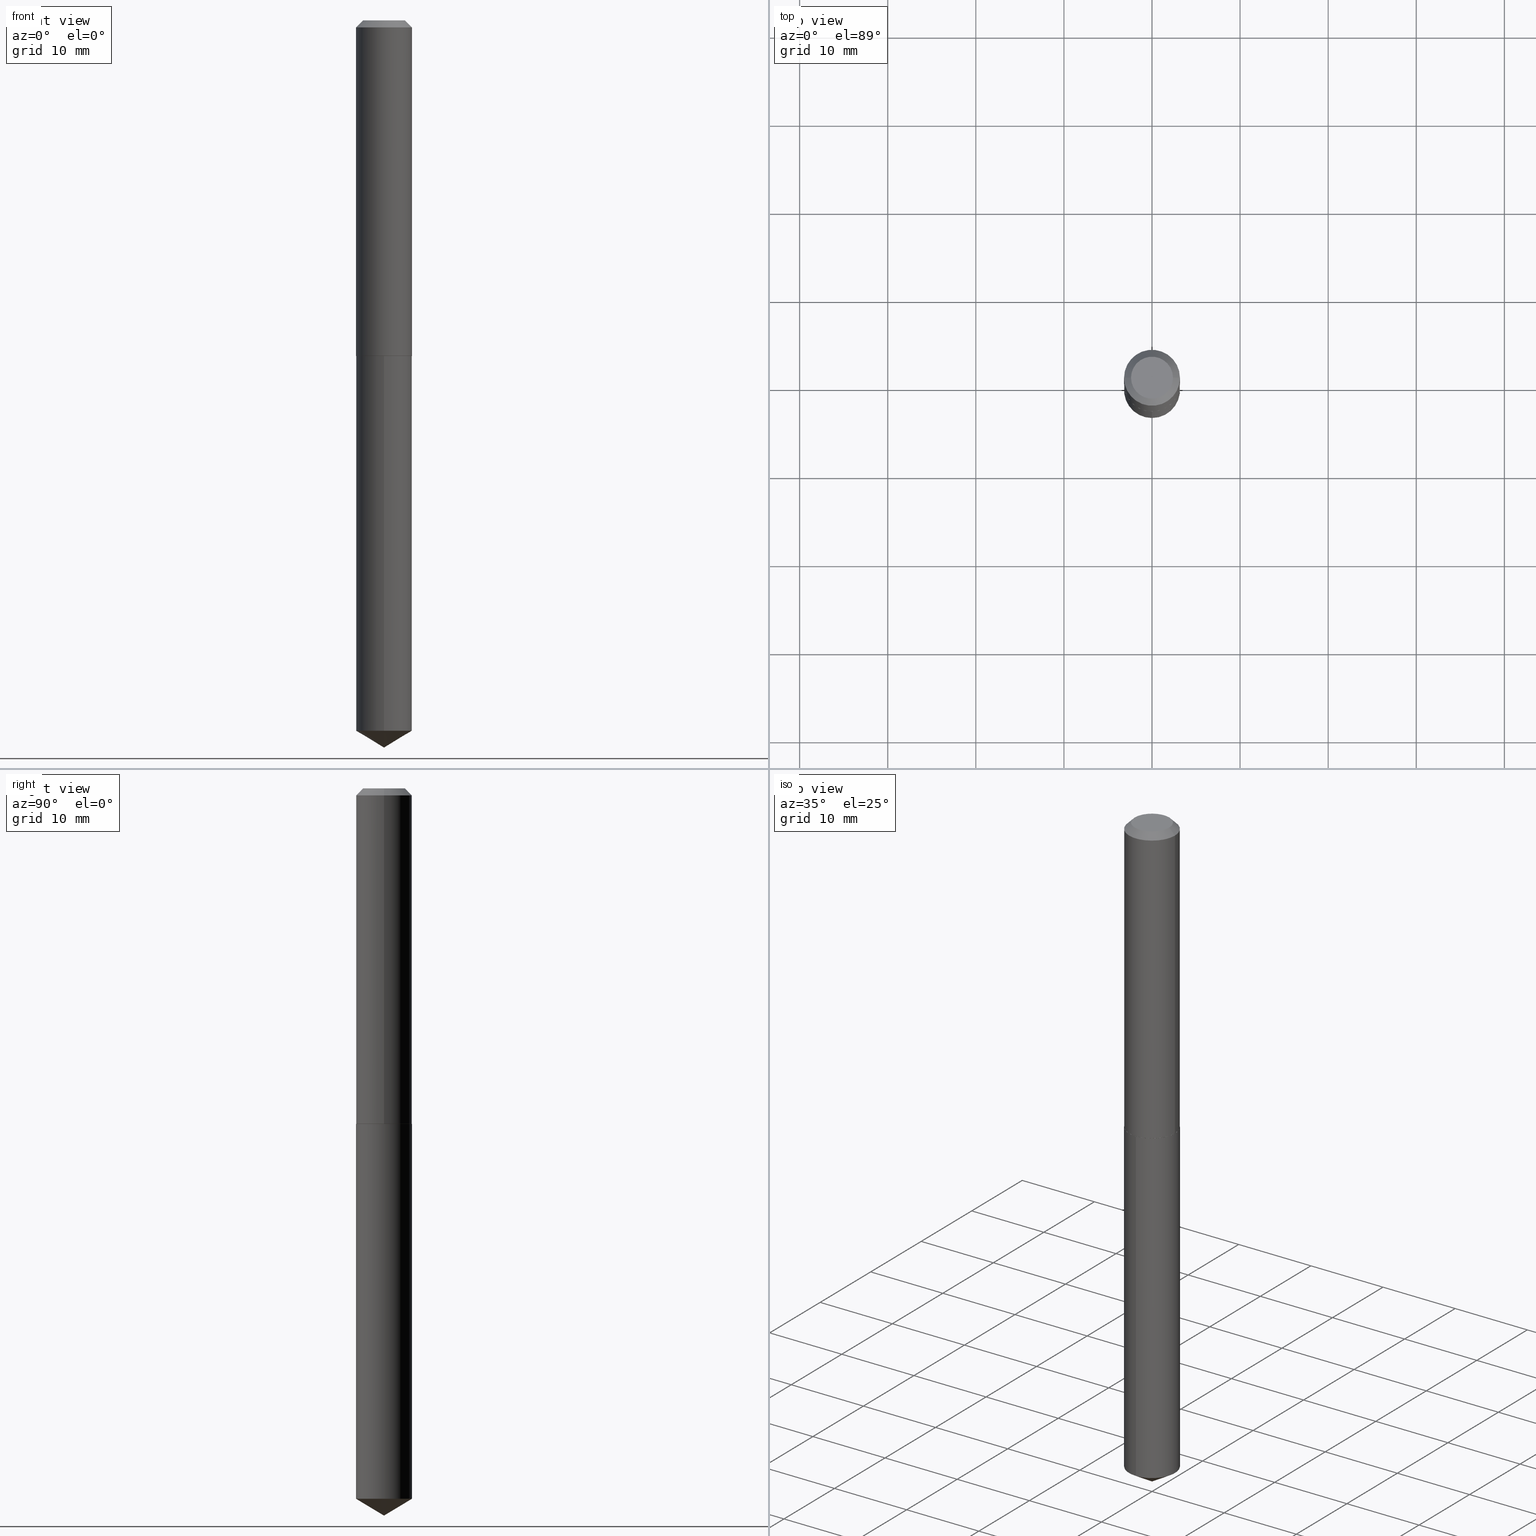
[diagram: canonical four-view strip — front | top / right | iso, engineering-drawing reading convention]
A machine part, canonical four-view strip (front | top / right | iso — engineering-drawing reading convention). The complete STEP part file that produces these views, byte-faithful:
ISO-10303-21;
HEADER;
FILE_DESCRIPTION (( 'STEP AP203' ),
    '1' );
FILE_NAME ('57176.STEP',
    '2024-04-22T23:25:51',
    ( '' ),
    ( '' ),
    'SwSTEP 2.0',
    'SolidWorks 2023',
    '' );
FILE_SCHEMA (( 'CONFIG_CONTROL_DESIGN' ));
ENDSEC;

DATA;
#1 = ADVANCED_BREP_SHAPE_REPRESENTATION ( '57176', ( #210, #321, #162 ), #319 ) ;
#2 = CARTESIAN_POINT ( 'NONE',  ( -0.09374999999999998612, 7.092071469525108711E-16, 2.449293598247037114E-19 ) ) ;
#3 = CIRCLE ( 'NONE', #69, 0.09374999999999998612 ) ;
#4 = APPLICATION_CONTEXT ( 'configuration controlled 3d designs of mechanical parts and assemblies' ) ;
#5 = CC_DESIGN_DATE_AND_TIME_ASSIGNMENT ( #349, #48, ( #332 ) ) ;
#6 = CARTESIAN_POINT ( 'NONE',  ( 7.642090019328607917E-31, -1.091087918388491006E-16, -0.03125000000000022898 ) ) ;
#7 = CLOSED_SHELL ( 'NONE', ( #97, #110, #389, #67, #375, #218, #147, #100 ) ) ;
#8 = CARTESIAN_POINT ( 'NONE',  ( -5.989671091818699506E-48, 8.551662891794013634E-34, 2.449293598294725065E-19 ) ) ;
#9 = ORIENTED_EDGE ( 'NONE', *, *, #40, .F. ) ;
#10 = DESIGN_CONTEXT ( 'detailed design', #4, 'design' ) ;
#11 = DIRECTION ( 'NONE',  ( -2.445468806185136597E-29, 3.491481338843145583E-15, 1.000000000000000000 ) ) ;
#12 = LINE ( 'NONE', #104, #155 ) ;
#13 =( NAMED_UNIT ( * ) PLANE_ANGLE_UNIT ( ) SI_UNIT ( $, .RADIAN. ) );
#14 = ORIENTED_EDGE ( 'NONE', *, *, #74, .F. ) ;
#15 = EDGE_LOOP ( 'NONE', ( #355, #346 ) ) ;
#16 = ORIENTED_EDGE ( 'NONE', *, *, #66, .F. ) ;
#17 = DIRECTION ( 'NONE',  ( -1.000000000000000000, 6.982962677686266711E-15, 0.000000000000000000 ) ) ;
#18 = APPROVAL_DATE_TIME ( #378, #208 ) ;
#19 = CARTESIAN_POINT ( 'NONE',  ( 3.666980474874613215E-29, -5.235476267595297462E-15, -1.499500000000000277 ) ) ;
#20 = VERTEX_POINT ( 'NONE', #29 ) ;
#21 = CIRCLE ( 'NONE', #217, 0.1250000000000000000 ) ;
#22 = DIRECTION ( 'NONE',  ( -2.445468806185136877E-29, 3.491481338843145188E-15, 1.000000000000000000 ) ) ;
#23 = ORIENTED_EDGE ( 'NONE', *, *, #66, .T. ) ;
#24 = FACE_OUTER_BOUND ( 'NONE', #268, .T. ) ;
#25 = CC_DESIGN_PERSON_AND_ORGANIZATION_ASSIGNMENT ( #202, #212, ( #58 ) ) ;
#26 = CYLINDRICAL_SURFACE ( 'NONE', #249, 0.1250000000000000833 ) ;
#27 = CIRCLE ( 'NONE', #132, 0.1250000000000000000 ) ;
#28 = CARTESIAN_POINT ( 'NONE',  ( 0.1250000000000000000, -9.819791265496324395E-16, -0.03125000000000022898 ) ) ;
#29 = CARTESIAN_POINT ( 'NONE',  ( 0.09374999999999998612, -8.049213644256857164E-16, 2.449293598345754986E-19 ) ) ;
#30 = ORIENTED_EDGE ( 'NONE', *, *, #225, .T. ) ;
#31 = PERSON_AND_ORGANIZATION ( #127, #306 ) ;
#32 = EDGE_CURVE ( 'NONE', #381, #43, #122, .T. ) ;
#33 = CARTESIAN_POINT ( 'NONE',  ( 3.668203209277704895E-29, -5.237222008264718177E-15, -1.500000000000000222 ) ) ;
#34 = CIRCLE ( 'NONE', #221, 0.1250000000000000000 ) ;
#35 = APPROVAL_DATE_TIME ( #130, #131 ) ;
#36 = CARTESIAN_POINT ( 'NONE',  ( 3.668203209277704895E-29, -5.237222008264718177E-15, -1.500000000000000222 ) ) ;
#37 = DIRECTION ( 'NONE',  ( 6.090539988449798946E-15, 0.8571673007021168855, 0.5150380749100467170 ) ) ;
#38 = DIRECTION ( 'NONE',  ( -2.445363039001879850E-29, 3.491632803469463695E-15, 1.000000000000000000 ) ) ;
#39 = EDGE_LOOP ( 'NONE', ( #367, #89 ) ) ;
#40 = EDGE_CURVE ( 'NONE', #146, #73, #93, .T. ) ;
#41 = CIRCLE ( 'NONE', #274, 0.1250000000000000000 ) ;
#42 = CARTESIAN_POINT ( 'NONE',  ( 0.000000000000000000, 0.000000000000000000, 0.000000000000000000 ) ) ;
#43 = VERTEX_POINT ( 'NONE', #60 ) ;
#44 = DIRECTION ( 'NONE',  ( -0.7071067811867406405, 7.493145998871051513E-15, 0.7071067811863543939 ) ) ;
#45 = SECURITY_CLASSIFICATION_LEVEL ( 'unclassified' ) ;
#46 = ADVANCED_FACE ( 'NONE', ( #183 ), #299, .T. ) ;
#47 = FACE_OUTER_BOUND ( 'NONE', #39, .T. ) ;
#48 = DATE_TIME_ROLE ( 'classification_date' ) ;
#49 = ORIENTED_EDGE ( 'NONE', *, *, #192, .F. ) ;
#50 = PERSON_AND_ORGANIZATION_ROLE ( 'classification_officer' ) ;
#51 = CARTESIAN_POINT ( 'NONE',  ( 8.881784197002027379E-16, 0.1249999999999889394, -3.174892422621556243 ) ) ;
#52 = CARTESIAN_POINT ( 'NONE',  ( -0.1250000000000001665, -4.347297847895170652E-15, -1.499500000000000277 ) ) ;
#53 = EDGE_LOOP ( 'NONE', ( #30, #369, #49, #102 ) ) ;
#54 = DIRECTION ( 'NONE',  ( 0.7071067811865450192, -7.319954787623246579E-15, -0.7071067811865500152 ) ) ;
#55 = DIMENSIONAL_EXPONENTS ( 1.000000000000000000, 0.000000000000000000, 0.000000000000000000, 0.000000000000000000, 0.000000000000000000, 0.000000000000000000, 0.000000000000000000 ) ;
#56 = ORIENTED_EDGE ( 'NONE', *, *, #196, .F. ) ;
#57 = AXIS2_PLACEMENT_3D ( 'NONE', #33, #223, #333 ) ;
#58 = PRODUCT_DEFINITION_FORMATION_WITH_SPECIFIED_SOURCE ( 'ANY', '', #372, .NOT_KNOWN. ) ;
#59 = CARTESIAN_POINT ( 'NONE',  ( 7.947429876756110354E-29, -1.134780661127575760E-14, -3.250000000000000000 ) ) ;
#60 = CARTESIAN_POINT ( 'NONE',  ( 8.881784197002029351E-16, 0.1249999999999947542, -1.500000000000000666 ) ) ;
#61 = PERSON_AND_ORGANIZATION ( #127, #306 ) ;
#62 = DIRECTION ( 'NONE',  ( -2.445468806185136597E-29, 3.491481338843145583E-15, 1.000000000000000000 ) ) ;
#63 = AXIS2_PLACEMENT_3D ( 'NONE', #19, #379, #109 ) ;
#64 = APPROVAL_PERSON_ORGANIZATION ( #383, #233, #243 ) ;
#65 =( LENGTH_UNIT ( ) NAMED_UNIT ( * ) SI_UNIT ( $, .METRE. ) );
#66 = EDGE_CURVE ( 'NONE', #390, #136, #313, .T. ) ;
#67 = ADVANCED_FACE ( 'NONE', ( #153 ), #141, .F. ) ;
#68 = DIRECTION ( 'NONE',  ( 6.982962677686265922E-15, 1.000000000000000000, -3.491632803469463301E-15 ) ) ;
#69 = AXIS2_PLACEMENT_3D ( 'NONE', #8, #165, #260 ) ;
#70 = FACE_OUTER_BOUND ( 'NONE', #15, .T. ) ;
#71 = LOCAL_TIME ( 19, 25, 51.00000000000000000, #158 ) ;
#72 = ORIENTED_EDGE ( 'NONE', *, *, #138, .T. ) ;
#73 = VERTEX_POINT ( 'NONE', #283 ) ;
#74 = EDGE_CURVE ( 'NONE', #180, #282, #206, .T. ) ;
#75 = ORIENTED_EDGE ( 'NONE', *, *, #40, .T. ) ;
#76 = ORIENTED_EDGE ( 'NONE', *, *, #357, .T. ) ;
#77 = ADVANCED_FACE ( 'NONE', ( #24 ), #79, .T. ) ;
#78 = DIRECTION ( 'NONE',  ( -2.445468806185136597E-29, 3.491481338843145583E-15, 1.000000000000000000 ) ) ;
#79 = CONICAL_SURFACE ( 'NONE', #364, 65.52281426576919898, 1.029744258676659641 ) ;
#80 =( NAMED_UNIT ( * ) SI_UNIT ( $, .STERADIAN. ) SOLID_ANGLE_UNIT ( ) );
#81 = ORIENTED_EDGE ( 'NONE', *, *, #285, .F. ) ;
#82 = CARTESIAN_POINT ( 'NONE',  ( -2.994835545909349753E-48, 4.275831445897006817E-34, 1.224646799147362533E-19 ) ) ;
#83 = CC_DESIGN_PERSON_AND_ORGANIZATION_ASSIGNMENT ( #61, #302, ( #372 ) ) ;
#84 = LINE ( 'NONE', #318, #117 ) ;
#85 = CARTESIAN_POINT ( 'NONE',  ( 0.000000000000000000, 0.000000000000000000, 0.000000000000000000 ) ) ;
#86 = VECTOR ( 'NONE', #329, 39.37007874015748143 ) ;
#87 = LINE ( 'NONE', #211, #238 ) ;
#88 = CC_DESIGN_PERSON_AND_ORGANIZATION_ASSIGNMENT ( #315, #292, ( #58 ) ) ;
#89 = ORIENTED_EDGE ( 'NONE', *, *, #169, .T. ) ;
#90 = MECHANICAL_CONTEXT ( 'NONE', #98, 'mechanical' ) ;
#91 = CIRCLE ( 'NONE', #275, 0.1250000000000001665 ) ;
#92 = CARTESIAN_POINT ( 'NONE',  ( 7.642090019328607917E-31, -1.091087918388491006E-16, -0.03125000000000022898 ) ) ;
#93 = LINE ( 'NONE', #219, #86 ) ;
#94 = EDGE_CURVE ( 'NONE', #231, #136, #116, .T. ) ;
#95 = CARTESIAN_POINT ( 'NONE',  ( 0.000000000000000000, 0.000000000000000000, 0.000000000000000000 ) ) ;
#96 = DIRECTION ( 'NONE',  ( -1.000000000000000000, 6.982962677686266711E-15, 0.000000000000000000 ) ) ;
#97 = ADVANCED_FACE ( 'NONE', ( #112 ), #199, .T. ) ;
#98 = APPLICATION_CONTEXT ( 'configuration controlled 3d designs of mechanical parts and assemblies' ) ;
#99 = CIRCLE ( 'NONE', #167, 0.1245000000000002632 ) ;
#100 = ADVANCED_FACE ( 'NONE', ( #47 ), #289, .F. ) ;
#101 = DIRECTION ( 'NONE',  ( 1.000000000000000000, -6.982962677686269077E-15, 0.000000000000000000 ) ) ;
#102 = ORIENTED_EDGE ( 'NONE', *, *, #138, .F. ) ;
#103 = ADVANCED_FACE ( 'NONE', ( #151 ), #331, .T. ) ;
#104 = CARTESIAN_POINT ( 'NONE',  ( -0.1250000000000000833, 8.881784197001258240E-16, -6.148668862818636431E-30 ) ) ;
#105 = ORIENTED_EDGE ( 'NONE', *, *, #169, .F. ) ;
#106 = LINE ( 'NONE', #334, #296 ) ;
#107 = CARTESIAN_POINT ( 'NONE',  ( 3.668203209277704895E-29, -5.237222008264718177E-15, -1.500000000000000222 ) ) ;
#108 = DIRECTION ( 'NONE',  ( -2.445363039001879850E-29, 3.491632803469463301E-15, 1.000000000000000000 ) ) ;
#109 = DIRECTION ( 'NONE',  ( 1.000000000000000000, -6.982962677686269077E-15, 0.000000000000000000 ) ) ;
#110 = ADVANCED_FACE ( 'NONE', ( #350 ), #26, .T. ) ;
#111 = AXIS2_PLACEMENT_3D ( 'NONE', #134, #38, #368 ) ;
#112 = FACE_OUTER_BOUND ( 'NONE', #371, .T. ) ;
#113 = CARTESIAN_POINT ( 'NONE',  ( 7.763923233860773815E-29, -1.108533133337258347E-14, -3.174892422621555799 ) ) ;
#114 = DIRECTION ( 'NONE',  ( -1.000000000000000000, 6.982962677686265922E-15, -4.876176775795935793E-29 ) ) ;
#115 = CARTESIAN_POINT ( 'NONE',  ( 7.642090019328607917E-31, -1.091087918388491006E-16, -0.03125000000000022898 ) ) ;
#116 = CIRCLE ( 'NONE', #63, 0.1250000000000001665 ) ;
#117 = VECTOR ( 'NONE', #54, 39.37007874015748143 ) ;
#118 = ORIENTED_EDGE ( 'NONE', *, *, #189, .F. ) ;
#119 = DATE_AND_TIME ( #270, #386 ) ;
#120 = DIRECTION ( 'NONE',  ( 1.000000000000000000, -6.982962677686266711E-15, 0.000000000000000000 ) ) ;
#121 = CARTESIAN_POINT ( 'NONE',  ( -8.728703347107465582E-16, -0.1250000000000052458, -1.499999999999999556 ) ) ;
#122 = LINE ( 'NONE', #251, #154 ) ;
#123 = EDGE_CURVE ( 'NONE', #144, #73, #281, .T. ) ;
#124 = AXIS2_PLACEMENT_3D ( 'NONE', #115, #293, #17 ) ;
#125 = UNCERTAINTY_MEASURE_WITH_UNIT (LENGTH_MEASURE( 1.000000000000000082E-05 ), #224, 'distance_accuracy_value', 'NONE');
#126 = CC_DESIGN_SECURITY_CLASSIFICATION ( #332, ( #58 ) ) ;
#127 = PERSON ( 'UNSPECIFIED', 'UNSPECIFIED', 'UNSPECIFIED', ('UNSPECIFIED'), ('UNSPECIFIED'), ('UNSPECIFIED') ) ;
#128 = DIRECTION ( 'NONE',  ( 0.7071067811867406405, -2.468850131084279700E-15, 0.7071067811863543939 ) ) ;
#129 = EDGE_CURVE ( 'NONE', #197, #390, #99, .T. ) ;
#130 = DATE_AND_TIME ( #273, #71 ) ;
#131 = APPROVAL ( #184, 'UNSPECIFIED' ) ;
#132 = AXIS2_PLACEMENT_3D ( 'NONE', #113, #347, #175 ) ;
#133 = DIRECTION ( 'NONE',  ( 0.000000000000000000, 0.000000000000000000, 1.000000000000000000 ) ) ;
#134 = CARTESIAN_POINT ( 'NONE',  ( 3.668203209277704895E-29, -5.237222008264718177E-15, -1.500000000000000222 ) ) ;
#135 = ORIENTED_EDGE ( 'NONE', *, *, #257, .F. ) ;
#136 = VERTEX_POINT ( 'NONE', #244 ) ;
#137 = COORDINATED_UNIVERSAL_TIME_OFFSET ( 5, 0, .BEHIND. ) ;
#138 = EDGE_CURVE ( 'NONE', #282, #149, #354, .T. ) ;
#139 = CARTESIAN_POINT ( 'NONE',  ( -8.832654686624381431E-28, 1.261182789899733228E-13, 36.12007874015748143 ) ) ;
#140 = ORIENTED_EDGE ( 'NONE', *, *, #129, .F. ) ;
#141 = PLANE ( 'NONE',  #305 ) ;
#142 = LOCAL_TIME ( 19, 25, 51.00000000000000000, #137 ) ;
#143 = EDGE_CURVE ( 'NONE', #197, #231, #309, .T. ) ;
#144 = VERTEX_POINT ( 'NONE', #28 ) ;
#145 = COORDINATED_UNIVERSAL_TIME_OFFSET ( 5, 0, .BEHIND. ) ;
#146 = VERTEX_POINT ( 'NONE', #2 ) ;
#147 = ADVANCED_FACE ( 'NONE', ( #160 ), #300, .T. ) ;
#148 = ORIENTED_EDGE ( 'NONE', *, *, #362, .F. ) ;
#149 = VERTEX_POINT ( 'NONE', #121 ) ;
#150 = ORIENTED_EDGE ( 'NONE', *, *, #290, .F. ) ;
#151 = FACE_OUTER_BOUND ( 'NONE', #198, .T. ) ;
#152 = APPROVAL_STATUS ( 'not_yet_approved' ) ;
#153 = FACE_OUTER_BOUND ( 'NONE', #166, .T. ) ;
#154 = VECTOR ( 'NONE', #361, 39.37007874015748143 ) ;
#155 = VECTOR ( 'NONE', #259, 39.37007874015748143 ) ;
#156 = DIRECTION ( 'NONE',  ( 2.445468806185136597E-29, -3.491481338843145583E-15, -1.000000000000000000 ) ) ;
#157 = AXIS2_PLACEMENT_3D ( 'NONE', #272, #359, #253 ) ;
#158 = COORDINATED_UNIVERSAL_TIME_OFFSET ( 5, 0, .BEHIND. ) ;
#159 = PRODUCT_RELATED_PRODUCT_CATEGORY ( 'detail', '', ( #372 ) ) ;
#160 = FACE_OUTER_BOUND ( 'NONE', #314, .T. ) ;
#161 = VECTOR ( 'NONE', #44, 39.37007874015748143 ) ;
#162 = AXIS2_PLACEMENT_3D ( 'NONE', #42, #133, #195 ) ;
#163 = ORIENTED_EDGE ( 'NONE', *, *, #290, .T. ) ;
#164 = CARTESIAN_POINT ( 'NONE',  ( -0.1245000000000002632, -4.349947075069281064E-15, -1.499999999999999778 ) ) ;
#165 = DIRECTION ( 'NONE',  ( -2.445468806185136597E-29, 3.491481338843145583E-15, 1.000000000000000000 ) ) ;
#166 = EDGE_LOOP ( 'NONE', ( #140, #118 ) ) ;
#167 = AXIS2_PLACEMENT_3D ( 'NONE', #291, #384, #262 ) ;
#168 = LOCAL_TIME ( 19, 25, 51.00000000000000000, #145 ) ;
#169 = EDGE_CURVE ( 'NONE', #20, #146, #264, .T. ) ;
#170 = EDGE_LOOP ( 'NONE', ( #16, #204, #374, #135 ) ) ;
#171 = EDGE_LOOP ( 'NONE', ( #193, #248, #242, #81 ) ) ;
#172 = CARTESIAN_POINT ( 'NONE',  ( 3.666980474874613215E-29, -5.235476267595297462E-15, -1.499500000000000277 ) ) ;
#173 = ORIENTED_EDGE ( 'NONE', *, *, #143, .F. ) ;
#174 = ORIENTED_EDGE ( 'NONE', *, *, #257, .T. ) ;
#175 = DIRECTION ( 'NONE',  ( -6.982962677686265922E-15, -1.000000000000000000, 4.370956789862821150E-15 ) ) ;
#176 = AXIS2_PLACEMENT_3D ( 'NONE', #6, #156, #96 ) ;
#177 = DIRECTION ( 'NONE',  ( -5.985567269335961790E-15, -0.8571673007021131108, 0.5150380749100526012 ) ) ;
#178 = CARTESIAN_POINT ( 'NONE',  ( -8.728703347107465582E-16, -0.1250000000000052458, -1.499999999999999556 ) ) ;
#179 = FACE_OUTER_BOUND ( 'NONE', #53, .T. ) ;
#180 = VERTEX_POINT ( 'NONE', #59 ) ;
#181 = DIRECTION ( 'NONE',  ( -2.445363039001879850E-29, 3.491632803469463695E-15, 1.000000000000000000 ) ) ;
#182 = DIRECTION ( 'NONE',  ( -2.445468806185136597E-29, 3.491481338843145583E-15, 1.000000000000000000 ) ) ;
#183 = FACE_OUTER_BOUND ( 'NONE', #234, .T. ) ;
#184 = APPROVAL_STATUS ( 'not_yet_approved' ) ;
#185 = FACE_OUTER_BOUND ( 'NONE', #226, .T. ) ;
#186 = DIRECTION ( 'NONE',  ( -2.445468806185136597E-29, 3.491481338843145583E-15, 1.000000000000000000 ) ) ;
#187 = LENGTH_MEASURE_WITH_UNIT ( LENGTH_MEASURE( 0.02539999999999999897 ), #65 );
#188 = AXIS2_PLACEMENT_3D ( 'NONE', #139, #241, #213 ) ;
#189 = EDGE_CURVE ( 'NONE', #390, #197, #228, .T. ) ;
#190 = AXIS2_PLACEMENT_3D ( 'NONE', #343, #214, #311 ) ;
#191 = DIRECTION ( 'NONE',  ( -2.445363039001879850E-29, 3.491632803469463695E-15, 1.000000000000000000 ) ) ;
#192 = EDGE_CURVE ( 'NONE', #149, #43, #34, .T. ) ;
#193 = ORIENTED_EDGE ( 'NONE', *, *, #94, .T. ) ;
#194 = PLANE ( 'NONE',  #336 ) ;
#195 = DIRECTION ( 'NONE',  ( 1.000000000000000000, 0.000000000000000000, 0.000000000000000000 ) ) ;
#196 = EDGE_CURVE ( 'NONE', #73, #144, #41, .T. ) ;
#197 = VERTEX_POINT ( 'NONE', #246 ) ;
#198 = EDGE_LOOP ( 'NONE', ( #14, #76, #284 ) ) ;
#199 = CONICAL_SURFACE ( 'NONE', #124, 0.1250000000000000000, 0.7853981633974447263 ) ;
#200 = ORIENTED_EDGE ( 'NONE', *, *, #32, .F. ) ;
#201 = CARTESIAN_POINT ( 'NONE',  ( -8.832654686624381431E-28, 1.261182789899733228E-13, 36.12007874015748143 ) ) ;
#202 = PERSON_AND_ORGANIZATION ( #127, #306 ) ;
#203 = PRODUCT_DEFINITION_SHAPE ( 'NONE', 'NONE',  #370 ) ;
#204 = ORIENTED_EDGE ( 'NONE', *, *, #189, .T. ) ;
#205 = CALENDAR_DATE ( 2024, 22, 4 ) ;
#206 = LINE ( 'NONE', #266, #373 ) ;
#207 = PERSON_AND_ORGANIZATION ( #127, #306 ) ;
#208 = APPROVAL ( #325, 'UNSPECIFIED' ) ;
#209 = DIRECTION ( 'NONE',  ( 1.000000000000000000, -6.982962677686266711E-15, 4.876176775795935793E-29 ) ) ;
#210 = MANIFOLD_SOLID_BREP ( 'Body-Move/Copy2[1]', #358 ) ;
#211 = CARTESIAN_POINT ( 'NONE',  ( 0.1250000000000000833, -8.728703347107839305E-16, 6.095220969744923945E-30 ) ) ;
#212 = PERSON_AND_ORGANIZATION_ROLE ( 'design_supplier' ) ;
#213 = DIRECTION ( 'NONE',  ( -6.982962677686267499E-15, -1.000000000000000000, 3.468864327941553588E-15 ) ) ;
#214 = DIRECTION ( 'NONE',  ( -2.445363039001879850E-29, 3.491632803469463695E-15, 1.000000000000000000 ) ) ;
#215 = SHAPE_DEFINITION_REPRESENTATION ( #203, #1 ) ;
#216 = VECTOR ( 'NONE', #108, 39.37007874015748143 ) ;
#217 = AXIS2_PLACEMENT_3D ( 'NONE', #308, #191, #307 ) ;
#218 = ADVANCED_FACE ( 'NONE', ( #185 ), #298, .T. ) ;
#219 = CARTESIAN_POINT ( 'NONE',  ( -0.1250000000000000000, 7.637615428719342382E-16, -0.03125000000000022898 ) ) ;
#220 = CC_DESIGN_PERSON_AND_ORGANIZATION_ASSIGNMENT ( #288, #50, ( #332 ) ) ;
#221 = AXIS2_PLACEMENT_3D ( 'NONE', #36, #181, #388 ) ;
#222 = AXIS2_PLACEMENT_3D ( 'NONE', #277, #11, #258 ) ;
#223 = DIRECTION ( 'NONE',  ( -2.445363039001879850E-29, 3.491632803469463695E-15, 1.000000000000000000 ) ) ;
#224 =( CONVERSION_BASED_UNIT ( 'INCH', #187 ) LENGTH_UNIT ( ) NAMED_UNIT ( #55 ) );
#225 = EDGE_CURVE ( 'NONE', #282, #381, #27, .T. ) ;
#226 = EDGE_LOOP ( 'NONE', ( #232, #174, #280, #56 ) ) ;
#227 = ORIENTED_EDGE ( 'NONE', *, *, #129, .T. ) ;
#228 = CIRCLE ( 'NONE', #157, 0.1245000000000002632 ) ;
#229 = CONICAL_SURFACE ( 'NONE', #222, 0.1250000000000001665, 0.7853981633977213939 ) ;
#230 = PERSON_AND_ORGANIZATION ( #127, #306 ) ;
#231 = VERTEX_POINT ( 'NONE', #286 ) ;
#232 = ORIENTED_EDGE ( 'NONE', *, *, #348, .F. ) ;
#233 = APPROVAL ( #152, 'UNSPECIFIED' ) ;
#234 = EDGE_LOOP ( 'NONE', ( #200, #322, #72, #267 ) ) ;
#235 = ORIENTED_EDGE ( 'NONE', *, *, #74, .T. ) ;
#236 = DIRECTION ( 'NONE',  ( 1.000000000000000000, -6.982962677686266711E-15, 4.876176775795935793E-29 ) ) ;
#237 = DATE_AND_TIME ( #205, #142 ) ;
#238 = VECTOR ( 'NONE', #22, 39.37007874015748143 ) ;
#239 = CARTESIAN_POINT ( 'NONE',  ( 3.668203209277704335E-29, -5.237222008264717388E-15, -1.499999999999999778 ) ) ;
#240 = CALENDAR_DATE ( 2024, 22, 4 ) ;
#241 = DIRECTION ( 'NONE',  ( -2.445363039001879850E-29, 3.491632803469463695E-15, 1.000000000000000000 ) ) ;
#242 = ORIENTED_EDGE ( 'NONE', *, *, #123, .F. ) ;
#243 = APPROVAL_ROLE ( '' ) ;
#244 = CARTESIAN_POINT ( 'NONE',  ( -0.1250000000000001665, -4.347297847895170652E-15, -1.499500000000000277 ) ) ;
#245 = COORDINATED_UNIVERSAL_TIME_OFFSET ( 5, 0, .BEHIND. ) ;
#246 = CARTESIAN_POINT ( 'NONE',  ( 0.1245000000000002632, -6.106600861636660086E-15, -1.499999999999999778 ) ) ;
#247 = EDGE_CURVE ( 'NONE', #43, #149, #341, .T. ) ;
#248 = ORIENTED_EDGE ( 'NONE', *, *, #348, .T. ) ;
#249 = AXIS2_PLACEMENT_3D ( 'NONE', #85, #78, #209 ) ;
#250 = CC_DESIGN_APPROVAL ( #208, ( #58 ) ) ;
#251 = CARTESIAN_POINT ( 'NONE',  ( 8.881784197001617172E-16, 0.1249999999999947542, -1.500000000000000666 ) ) ;
#252 = AXIS2_PLACEMENT_3D ( 'NONE', #255, #276, #101 ) ;
#253 = DIRECTION ( 'NONE',  ( 1.000000000000000000, -6.982962677686267499E-15, 0.000000000000000000 ) ) ;
#254 = AXIS2_PLACEMENT_3D ( 'NONE', #95, #62, #236 ) ;
#255 = CARTESIAN_POINT ( 'NONE',  ( 3.666980474874613215E-29, -5.235476267595297462E-15, -1.499500000000000277 ) ) ;
#256 = DIRECTION ( 'NONE',  ( 2.445363039001879570E-29, -3.491632803469463301E-15, -1.000000000000000000 ) ) ;
#257 = EDGE_CURVE ( 'NONE', #136, #231, #91, .T. ) ;
#258 = DIRECTION ( 'NONE',  ( 1.000000000000000000, -6.982962677686269077E-15, 0.000000000000000000 ) ) ;
#259 = DIRECTION ( 'NONE',  ( -2.445468806185136877E-29, 3.491481338843145188E-15, 1.000000000000000000 ) ) ;
#260 = DIRECTION ( 'NONE',  ( 1.000000000000000000, -6.982962677686266711E-15, 4.876179125272552877E-29 ) ) ;
#261 = DATE_TIME_ROLE ( 'creation_date' ) ;
#262 = DIRECTION ( 'NONE',  ( 1.000000000000000000, -6.982962677686267499E-15, 0.000000000000000000 ) ) ;
#263 = DIRECTION ( 'NONE',  ( 1.000000000000000000, -6.982962677686269077E-15, 0.000000000000000000 ) ) ;
#264 = CIRCLE ( 'NONE', #385, 0.09374999999999998612 ) ;
#265 = CONICAL_SURFACE ( 'NONE', #252, 0.1250000000000001665, 0.7853981633977213939 ) ;
#266 = CARTESIAN_POINT ( 'NONE',  ( 7.947429876756109233E-29, -1.134780661127575760E-14, -3.250000000000000000 ) ) ;
#267 = ORIENTED_EDGE ( 'NONE', *, *, #247, .F. ) ;
#268 = EDGE_LOOP ( 'NONE', ( #382, #235, #337 ) ) ;
#269 = CARTESIAN_POINT ( 'NONE',  ( 7.642090019328607917E-31, -1.091087918388491006E-16, -0.03125000000000022898 ) ) ;
#270 = CALENDAR_DATE ( 2024, 22, 4 ) ;
#271 = DIRECTION ( 'NONE',  ( -2.445468806185136597E-29, 3.491481338843145583E-15, 1.000000000000000000 ) ) ;
#272 = CARTESIAN_POINT ( 'NONE',  ( 3.668203209277704335E-29, -5.237222008264717388E-15, -1.499999999999999778 ) ) ;
#273 = CALENDAR_DATE ( 2024, 22, 4 ) ;
#274 = AXIS2_PLACEMENT_3D ( 'NONE', #92, #182, #120 ) ;
#275 = AXIS2_PLACEMENT_3D ( 'NONE', #172, #352, #263 ) ;
#276 = DIRECTION ( 'NONE',  ( -2.445468806185136597E-29, 3.491481338843145583E-15, 1.000000000000000000 ) ) ;
#277 = CARTESIAN_POINT ( 'NONE',  ( 3.666980474874613215E-29, -5.235476267595297462E-15, -1.499500000000000277 ) ) ;
#278 = CC_DESIGN_DATE_AND_TIME_ASSIGNMENT ( #237, #261, ( #370 ) ) ;
#279 = ORIENTED_EDGE ( 'NONE', *, *, #94, .F. ) ;
#280 = ORIENTED_EDGE ( 'NONE', *, *, #285, .T. ) ;
#281 = CIRCLE ( 'NONE', #335, 0.1250000000000000000 ) ;
#282 = VERTEX_POINT ( 'NONE', #324 ) ;
#283 = CARTESIAN_POINT ( 'NONE',  ( -0.1250000000000000000, -1.784114110016946866E-15, -0.03125000000000022898 ) ) ;
#284 = ORIENTED_EDGE ( 'NONE', *, *, #225, .F. ) ;
#285 = EDGE_CURVE ( 'NONE', #231, #144, #87, .T. ) ;
#286 = CARTESIAN_POINT ( 'NONE',  ( 0.1250000000000001665, -6.108346602306082379E-15, -1.499500000000000277 ) ) ;
#287 = CC_DESIGN_APPROVAL ( #233, ( #332 ) ) ;
#288 = PERSON_AND_ORGANIZATION ( #127, #306 ) ;
#289 = PLANE ( 'NONE',  #317 ) ;
#290 = EDGE_CURVE ( 'NONE', #20, #144, #84, .T. ) ;
#291 = CARTESIAN_POINT ( 'NONE',  ( 3.668203209277704335E-29, -5.237222008264717388E-15, -1.499999999999999778 ) ) ;
#292 = PERSON_AND_ORGANIZATION_ROLE ( 'creator' ) ;
#293 = DIRECTION ( 'NONE',  ( 2.445468806185136597E-29, -3.491481338843145583E-15, -1.000000000000000000 ) ) ;
#294 = CYLINDRICAL_SURFACE ( 'NONE', #111, 0.1250000000000000000 ) ;
#295 = VECTOR ( 'NONE', #128, 39.37007874015748143 ) ;
#296 = VECTOR ( 'NONE', #37, 39.37007874015748143 ) ;
#297 = APPROVAL_ROLE ( '' ) ;
#298 = CYLINDRICAL_SURFACE ( 'NONE', #254, 0.1250000000000000833 ) ;
#299 = CYLINDRICAL_SURFACE ( 'NONE', #57, 0.1250000000000000000 ) ;
#300 = CONICAL_SURFACE ( 'NONE', #176, 0.1250000000000000000, 0.7853981633974447263 ) ;
#301 = APPROVAL_PERSON_ORGANIZATION ( #207, #208, #356 ) ;
#302 = PERSON_AND_ORGANIZATION_ROLE ( 'design_owner' ) ;
#303 = DIRECTION ( 'NONE',  ( 1.000000000000000000, -6.982962677686266711E-15, 4.876179125272552877E-29 ) ) ;
#304 = ADVANCED_FACE ( 'NONE', ( #179 ), #294, .T. ) ;
#305 = AXIS2_PLACEMENT_3D ( 'NONE', #239, #380, #345 ) ;
#306 = ORGANIZATION ( 'UNSPECIFIED', 'UNSPECIFIED', '' ) ;
#307 = DIRECTION ( 'NONE',  ( -6.982962677686265922E-15, -1.000000000000000000, 4.370956789862821150E-15 ) ) ;
#308 = CARTESIAN_POINT ( 'NONE',  ( 7.763923233860773815E-29, -1.108533133337258347E-14, -3.174892422621555799 ) ) ;
#309 = LINE ( 'NONE', #376, #295 ) ;
#310 = ORIENTED_EDGE ( 'NONE', *, *, #196, .T. ) ;
#311 = DIRECTION ( 'NONE',  ( -6.982962677686265922E-15, -1.000000000000000000, 4.370956789862821150E-15 ) ) ;
#312 = APPROVAL_DATE_TIME ( #119, #233 ) ;
#313 = LINE ( 'NONE', #52, #161 ) ;
#314 = EDGE_LOOP ( 'NONE', ( #150, #148, #75, #310 ) ) ;
#315 = PERSON_AND_ORGANIZATION ( #127, #306 ) ;
#316 = DIRECTION ( 'NONE',  ( -2.445363039001879850E-29, 3.491632803469463695E-15, 1.000000000000000000 ) ) ;
#317 = AXIS2_PLACEMENT_3D ( 'NONE', #82, #323, #114 ) ;
#318 = CARTESIAN_POINT ( 'NONE',  ( 0.1250000000000000000, -9.666710415602905459E-16, -0.03125000000000022898 ) ) ;
#319 =( GEOMETRIC_REPRESENTATION_CONTEXT ( 3 ) GLOBAL_UNCERTAINTY_ASSIGNED_CONTEXT ( ( #125 ) ) GLOBAL_UNIT_ASSIGNED_CONTEXT ( ( #224, #13, #80 ) ) REPRESENTATION_CONTEXT ( 'NONE', 'WORKASPACE' ) );
#320 = DIRECTION ( 'NONE',  ( 1.000000000000000000, -6.982962677686266711E-15, 0.000000000000000000 ) ) ;
#321 = MANIFOLD_SOLID_BREP ( 'Body-Move/Copy2[2]', #7 ) ;
#322 = ORIENTED_EDGE ( 'NONE', *, *, #365, .T. ) ;
#323 = DIRECTION ( 'NONE',  ( 2.438088387897960049E-29, -3.491481338843145188E-15, -1.000000000000000000 ) ) ;
#324 = CARTESIAN_POINT ( 'NONE',  ( -8.728703347107057346E-16, -0.1250000000000110745, -3.174892422621555355 ) ) ;
#325 = APPROVAL_STATUS ( 'not_yet_approved' ) ;
#326 = CARTESIAN_POINT ( 'NONE',  ( -5.989671091818699506E-48, 8.551662891794013634E-34, 2.449293598294725065E-19 ) ) ;
#327 = APPROVAL_PERSON_ORGANIZATION ( #31, #131, #297 ) ;
#328 = APPLICATION_PROTOCOL_DEFINITION ( 'international standard', 'config_control_design', 1994, #4 ) ;
#329 = DIRECTION ( 'NONE',  ( -0.7071067811865450192, 2.468850131082230634E-15, -0.7071067811865500152 ) ) ;
#330 = FACE_OUTER_BOUND ( 'NONE', #342, .T. ) ;
#331 = CONICAL_SURFACE ( 'NONE', #188, 65.52281426576919898, 1.029744258676659641 ) ;
#332 = SECURITY_CLASSIFICATION ( '', '', #45 ) ;
#333 = DIRECTION ( 'NONE',  ( -6.982962677686265922E-15, -1.000000000000000000, 4.370956789862821150E-15 ) ) ;
#334 = CARTESIAN_POINT ( 'NONE',  ( 7.947749960665926082E-29, -1.134735221739680366E-14, -3.250000000000000000 ) ) ;
#335 = AXIS2_PLACEMENT_3D ( 'NONE', #269, #271, #320 ) ;
#336 = AXIS2_PLACEMENT_3D ( 'NONE', #107, #256, #68 ) ;
#337 = ORIENTED_EDGE ( 'NONE', *, *, #365, .F. ) ;
#338 = APPLICATION_PROTOCOL_DEFINITION ( 'international standard', 'config_control_design', 1994, #98 ) ;
#339 = DIRECTION ( 'NONE',  ( -6.982962677686267499E-15, -1.000000000000000000, 3.468864327941553588E-15 ) ) ;
#340 = CC_DESIGN_PERSON_AND_ORGANIZATION_ASSIGNMENT ( #230, #387, ( #370 ) ) ;
#341 = CIRCLE ( 'NONE', #190, 0.1250000000000000000 ) ;
#342 = EDGE_LOOP ( 'NONE', ( #227, #23, #279, #173 ) ) ;
#343 = CARTESIAN_POINT ( 'NONE',  ( 3.668203209277704895E-29, -5.237222008264718177E-15, -1.500000000000000222 ) ) ;
#344 = CALENDAR_DATE ( 2024, 22, 4 ) ;
#345 = DIRECTION ( 'NONE',  ( 1.000000000000000000, -6.982962677686265922E-15, 4.876176775795935793E-29 ) ) ;
#346 = ORIENTED_EDGE ( 'NONE', *, *, #247, .T. ) ;
#347 = DIRECTION ( 'NONE',  ( -2.445363039001879850E-29, 3.491632803469463695E-15, 1.000000000000000000 ) ) ;
#348 = EDGE_CURVE ( 'NONE', #136, #73, #12, .T. ) ;
#349 = DATE_AND_TIME ( #240, #168 ) ;
#350 = FACE_OUTER_BOUND ( 'NONE', #171, .T. ) ;
#351 = ORIENTED_EDGE ( 'NONE', *, *, #123, .T. ) ;
#352 = DIRECTION ( 'NONE',  ( -2.445468806185136597E-29, 3.491481338843145583E-15, 1.000000000000000000 ) ) ;
#353 = COORDINATED_UNIVERSAL_TIME_OFFSET ( 5, 0, .BEHIND. ) ;
#354 = LINE ( 'NONE', #178, #216 ) ;
#355 = ORIENTED_EDGE ( 'NONE', *, *, #192, .T. ) ;
#356 = APPROVAL_ROLE ( '' ) ;
#357 = EDGE_CURVE ( 'NONE', #180, #381, #106, .T. ) ;
#358 = CLOSED_SHELL ( 'NONE', ( #304, #103, #77, #46, #363 ) ) ;
#359 = DIRECTION ( 'NONE',  ( -2.445468806185136597E-29, 3.491481338843145583E-15, 1.000000000000000000 ) ) ;
#360 = LOCAL_TIME ( 19, 25, 51.00000000000000000, #245 ) ;
#361 = DIRECTION ( 'NONE',  ( -2.445363039001879850E-29, 3.491632803469463301E-15, 1.000000000000000000 ) ) ;
#362 = EDGE_CURVE ( 'NONE', #146, #20, #3, .T. ) ;
#363 = ADVANCED_FACE ( 'NONE', ( #70 ), #194, .F. ) ;
#364 = AXIS2_PLACEMENT_3D ( 'NONE', #201, #316, #339 ) ;
#365 = EDGE_CURVE ( 'NONE', #381, #282, #21, .T. ) ;
#366 = FACE_OUTER_BOUND ( 'NONE', #170, .T. ) ;
#367 = ORIENTED_EDGE ( 'NONE', *, *, #362, .T. ) ;
#368 = DIRECTION ( 'NONE',  ( -6.982962677686265922E-15, -1.000000000000000000, 4.370956789862821150E-15 ) ) ;
#369 = ORIENTED_EDGE ( 'NONE', *, *, #32, .T. ) ;
#370 = PRODUCT_DEFINITION ( 'UNKNOWN', '', #58, #10 ) ;
#371 = EDGE_LOOP ( 'NONE', ( #105, #163, #351, #9 ) ) ;
#372 = PRODUCT ( '57176', '57176', '', ( #90 ) ) ;
#373 = VECTOR ( 'NONE', #177, 39.37007874015748854 ) ;
#374 = ORIENTED_EDGE ( 'NONE', *, *, #143, .T. ) ;
#375 = ADVANCED_FACE ( 'NONE', ( #366 ), #229, .T. ) ;
#376 = CARTESIAN_POINT ( 'NONE',  ( 0.1250000000000001665, -6.108346602306082379E-15, -1.499500000000000277 ) ) ;
#377 = CC_DESIGN_APPROVAL ( #131, ( #370 ) ) ;
#378 = DATE_AND_TIME ( #344, #360 ) ;
#379 = DIRECTION ( 'NONE',  ( -2.445468806185136597E-29, 3.491481338843145583E-15, 1.000000000000000000 ) ) ;
#380 = DIRECTION ( 'NONE',  ( -2.438088387897960049E-29, 3.491481338843145188E-15, 1.000000000000000000 ) ) ;
#381 = VERTEX_POINT ( 'NONE', #51 ) ;
#382 = ORIENTED_EDGE ( 'NONE', *, *, #357, .F. ) ;
#383 = PERSON_AND_ORGANIZATION ( #127, #306 ) ;
#384 = DIRECTION ( 'NONE',  ( -2.445468806185136597E-29, 3.491481338843145583E-15, 1.000000000000000000 ) ) ;
#385 = AXIS2_PLACEMENT_3D ( 'NONE', #326, #186, #303 ) ;
#386 = LOCAL_TIME ( 19, 25, 51.00000000000000000, #353 ) ;
#387 = PERSON_AND_ORGANIZATION_ROLE ( 'creator' ) ;
#388 = DIRECTION ( 'NONE',  ( -6.982962677686265922E-15, -1.000000000000000000, 4.370956789862821150E-15 ) ) ;
#389 = ADVANCED_FACE ( 'NONE', ( #330 ), #265, .T. ) ;
#390 = VERTEX_POINT ( 'NONE', #164 ) ;
ENDSEC;
END-ISO-10303-21;
